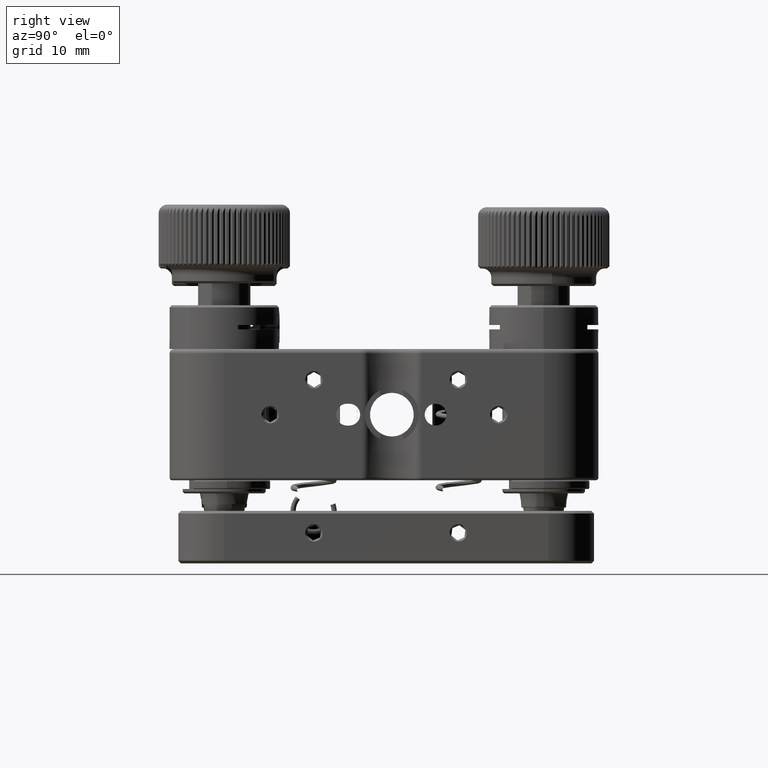
[diagram: clean part render]
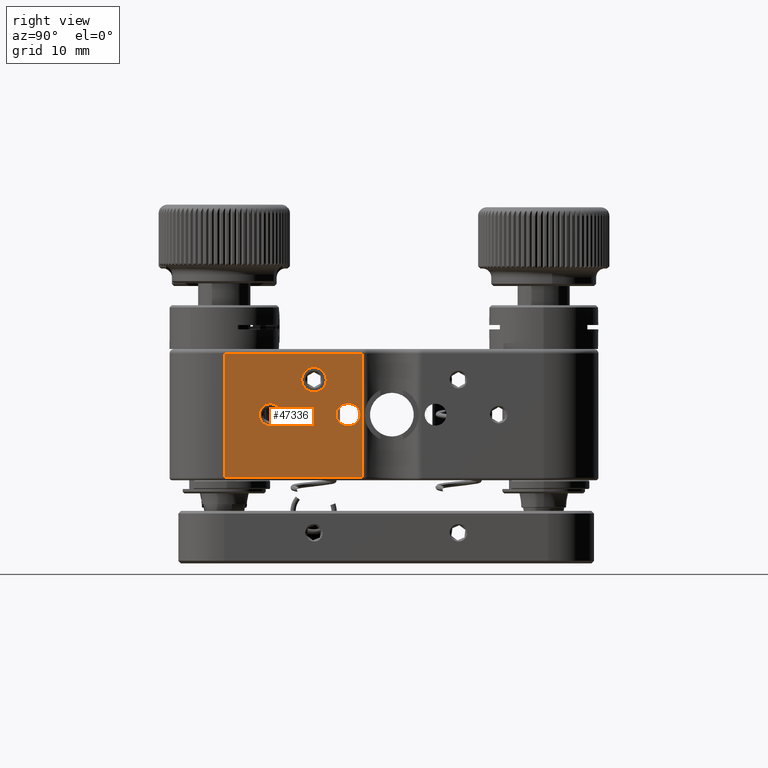
[diagram: same view with one face highlighted and labeled with its STEP entity id]
A machine part, right view. The second image highlights one B-rep face of the part: STEP entity #47336.
In plain terms, the highlighted planar face has unit normal (-1, -0, 0).
Its self-contained STEP definition (entity closure, byte-faithful):
#384 = VERTEX_POINT ( 'NONE', #39120 ) ;
#873 = EDGE_CURVE ( 'NONE', #12786, #384, #6292, .T. ) ;
#1487 = EDGE_LOOP ( 'NONE', ( #53136, #22318 ) ) ;
#1794 = DIRECTION ( 'NONE',  ( 1.000000000000000000, -0.000000000000000000, -0.000000000000000000 ) ) ;
#2675 = ORIENTED_EDGE ( 'NONE', *, *, #38685, .F. ) ;
#3104 = DIRECTION ( 'NONE',  ( 0.000000000000000000, 0.000000000000000000, -1.000000000000000000 ) ) ;
#3342 = ORIENTED_EDGE ( 'NONE', *, *, #20393, .T. ) ;
#3479 = VERTEX_POINT ( 'NONE', #52392 ) ;
#3561 = LINE ( 'NONE', #28677, #41124 ) ;
#4210 = CARTESIAN_POINT ( 'NONE',  ( 24.50000000000000000, -8.000000000000000000, 3.999999999999998224 ) ) ;
#4452 = CARTESIAN_POINT ( 'NONE',  ( 24.50000000000000000, -8.000000000000000000, 2.750000000000009326 ) ) ;
#4879 = DIRECTION ( 'NONE',  ( -1.416100796715761110E-16, 1.000000000000000000, 0.000000000000000000 ) ) ;
#6283 = VERTEX_POINT ( 'NONE', #18805 ) ;
#6292 = CIRCLE ( 'NONE', #9843, 1.249999999999988898 ) ;
#7728 = VECTOR ( 'NONE', #48927, 1000.000000000000000 ) ;
#8100 = PLANE ( 'NONE',  #16048 ) ;
#9843 = AXIS2_PLACEMENT_3D ( 'NONE', #49378, #19750, #36787 ) ;
#10381 = FACE_BOUND ( 'NONE', #1487, .T. ) ;
#10762 = EDGE_CURVE ( 'NONE', #384, #12786, #39155, .T. ) ;
#10957 = DIRECTION ( 'NONE',  ( 0.000000000000000000, 0.000000000000000000, -1.000000000000000000 ) ) ;
#10986 = DIRECTION ( 'NONE',  ( 0.000000000000000000, 0.000000000000000000, -1.000000000000000000 ) ) ;
#11109 = VERTEX_POINT ( 'NONE', #34485 ) ;
#11822 = EDGE_CURVE ( 'NONE', #28582, #38625, #52208, .T. ) ;
#12015 = FACE_BOUND ( 'NONE', #48183, .T. ) ;
#12786 = VERTEX_POINT ( 'NONE', #4452 ) ;
#13476 = DIRECTION ( 'NONE',  ( 0.000000000000000000, 0.000000000000000000, -1.000000000000000000 ) ) ;
#16048 = AXIS2_PLACEMENT_3D ( 'NONE', #37144, #29590, #50849 ) ;
#16693 = CARTESIAN_POINT ( 'NONE',  ( 24.50000000000000355, -18.24999999999999289, 6.999999999999999112 ) ) ;
#17069 = VERTEX_POINT ( 'NONE', #18864 ) ;
#17246 = CIRCLE ( 'NONE', #44003, 1.249999999999988898 ) ;
#18261 = CARTESIAN_POINT ( 'NONE',  ( 24.50000000000000355, -12.99999999999999822, -1.249999999999988898 ) ) ;
#18471 = VECTOR ( 'NONE', #4879, 1000.000000000000000 ) ;
#18692 = DIRECTION ( 'NONE',  ( 0.000000000000000000, 0.000000000000000000, -1.000000000000000000 ) ) ;
#18805 = CARTESIAN_POINT ( 'NONE',  ( 24.50000000000000355, -12.99999999999999822, 1.249999999999988898 ) ) ;
#18864 = CARTESIAN_POINT ( 'NONE',  ( 24.50000000000000000, -2.476388603226839624, -7.200000000000000178 ) ) ;
#19750 = DIRECTION ( 'NONE',  ( 1.000000000000000000, -0.000000000000000000, -0.000000000000000000 ) ) ;
#19876 = LINE ( 'NONE', #28230, #53994 ) ;
#20393 = EDGE_CURVE ( 'NONE', #17069, #3479, #3561, .T. ) ;
#22260 = EDGE_CURVE ( 'NONE', #42993, #17069, #42586, .T. ) ;
#22318 = ORIENTED_EDGE ( 'NONE', *, *, #10762, .F. ) ;
#22645 = ORIENTED_EDGE ( 'NONE', *, *, #43451, .F. ) ;
#23993 = EDGE_CURVE ( 'NONE', #11109, #35197, #53672, .T. ) ;
#25746 = VERTEX_POINT ( 'NONE', #16693 ) ;
#25892 = VECTOR ( 'NONE', #47278, 1000.000000000000000 ) ;
#26029 = CARTESIAN_POINT ( 'NONE',  ( 24.50000000000000000, -3.974999999999999201, 1.561424668912872251E-16 ) ) ;
#27140 = LINE ( 'NONE', #34964, #25892 ) ;
#28230 = CARTESIAN_POINT ( 'NONE',  ( 24.50000000000000355, -18.24999999999999289, 7.500000000000000000 ) ) ;
#28582 = VERTEX_POINT ( 'NONE', #43203 ) ;
#28627 = EDGE_LOOP ( 'NONE', ( #32698, #53713, #3342, #55184 ) ) ;
#28677 = CARTESIAN_POINT ( 'NONE',  ( 24.50000000000000000, -2.476388603226839624, 7.500000000000000000 ) ) ;
#28885 = AXIS2_PLACEMENT_3D ( 'NONE', #53442, #1794, #10986 ) ;
#29590 = DIRECTION ( 'NONE',  ( -1.000000000000000000, -1.416100796715761110E-16, 0.000000000000000000 ) ) ;
#30568 = CARTESIAN_POINT ( 'NONE',  ( 24.49999999999999645, 24.50000000000000355, -7.200000000000000178 ) ) ;
#32698 = ORIENTED_EDGE ( 'NONE', *, *, #41722, .T. ) ;
#34301 = ORIENTED_EDGE ( 'NONE', *, *, #23993, .F. ) ;
#34461 = ORIENTED_EDGE ( 'NONE', *, *, #53823, .F. ) ;
#34485 = CARTESIAN_POINT ( 'NONE',  ( 24.50000000000000000, -4.224999999999999645, -1.250000000000000000 ) ) ;
#34964 = CARTESIAN_POINT ( 'NONE',  ( 24.50000000000000355, -18.24999999999999289, 6.999999999999999112 ) ) ;
#35197 = VERTEX_POINT ( 'NONE', #39324 ) ;
#36104 = CARTESIAN_POINT ( 'NONE',  ( 24.50000000000000355, -18.24999999999999289, -7.200000000000000178 ) ) ;
#36787 = DIRECTION ( 'NONE',  ( 0.000000000000000000, 0.000000000000000000, -1.000000000000000000 ) ) ;
#37144 = CARTESIAN_POINT ( 'NONE',  ( 24.49999999999999645, 24.50000000000000355, 7.500000000000000000 ) ) ;
#38284 = DIRECTION ( 'NONE',  ( 1.000000000000000000, -0.000000000000000000, -0.000000000000000000 ) ) ;
#38576 = EDGE_LOOP ( 'NONE', ( #51386, #53199, #34301, #22645 ) ) ;
#38625 = VERTEX_POINT ( 'NONE', #48442 ) ;
#38685 = EDGE_CURVE ( 'NONE', #6283, #52286, #42258, .T. ) ;
#39120 = CARTESIAN_POINT ( 'NONE',  ( 24.50000000000000000, -8.000000000000000000, 5.249999999999987566 ) ) ;
#39155 = CIRCLE ( 'NONE', #41818, 1.249999999999988898 ) ;
#39324 = CARTESIAN_POINT ( 'NONE',  ( 24.50000000000000000, -3.974999999999998312, -1.250000000000000000 ) ) ;
#39519 = AXIS2_PLACEMENT_3D ( 'NONE', #26029, #43915, #13476 ) ;
#40214 = DIRECTION ( 'NONE',  ( 1.000000000000000000, -0.000000000000000000, -0.000000000000000000 ) ) ;
#40490 = CARTESIAN_POINT ( 'NONE',  ( 24.50000000000000355, -12.99999999999999822, 0.000000000000000000 ) ) ;
#41124 = VECTOR ( 'NONE', #41279, 1000.000000000000000 ) ;
#41279 = DIRECTION ( 'NONE',  ( 0.000000000000000000, 0.000000000000000000, 1.000000000000000000 ) ) ;
#41722 = EDGE_CURVE ( 'NONE', #25746, #42993, #19876, .T. ) ;
#41818 = AXIS2_PLACEMENT_3D ( 'NONE', #4210, #38284, #3104 ) ;
#42258 = CIRCLE ( 'NONE', #28885, 1.249999999999988898 ) ;
#42414 = CARTESIAN_POINT ( 'NONE',  ( 24.50000000000000000, -4.224999999999999645, 7.960204194457759732E-17 ) ) ;
#42441 = FACE_OUTER_BOUND ( 'NONE', #28627, .T. ) ;
#42586 = LINE ( 'NONE', #30568, #18471 ) ;
#42993 = VERTEX_POINT ( 'NONE', #36104 ) ;
#43203 = CARTESIAN_POINT ( 'NONE',  ( 24.50000000000000000, -3.975000000000002753, 1.250000000000000222 ) ) ;
#43252 = DIRECTION ( 'NONE',  ( 0.000000000000000000, -1.000000000000000000, 0.000000000000000000 ) ) ;
#43451 = EDGE_CURVE ( 'NONE', #38625, #11109, #44321, .T. ) ;
#43915 = DIRECTION ( 'NONE',  ( 1.000000000000000000, 0.000000000000000000, 0.000000000000000000 ) ) ;
#44003 = AXIS2_PLACEMENT_3D ( 'NONE', #40490, #40214, #18692 ) ;
#44321 = CIRCLE ( 'NONE', #51481, 1.250000000000000000 ) ;
#44727 = CARTESIAN_POINT ( 'NONE',  ( 24.50000000000000000, -3.974999999999998312, -1.250000000000000000 ) ) ;
#44846 = CARTESIAN_POINT ( 'NONE',  ( 24.50000000000000000, -3.975000000000000089, 1.250000000000000000 ) ) ;
#46365 = FACE_BOUND ( 'NONE', #38576, .T. ) ;
#47172 = DIRECTION ( 'NONE',  ( 1.000000000000000000, 0.000000000000000000, 0.000000000000000000 ) ) ;
#47278 = DIRECTION ( 'NONE',  ( 1.416100796715761110E-16, -1.000000000000000000, -0.000000000000000000 ) ) ;
#47336 = ADVANCED_FACE ( 'NONE', ( #10381, #12015, #46365, #42441 ), #8100, .F. ) ;
#48183 = EDGE_LOOP ( 'NONE', ( #34461, #2675 ) ) ;
#48251 = EDGE_CURVE ( 'NONE', #3479, #25746, #27140, .T. ) ;
#48442 = CARTESIAN_POINT ( 'NONE',  ( 24.50000000000000000, -4.224999999999999645, 1.250000000000000000 ) ) ;
#48927 = DIRECTION ( 'NONE',  ( -0.000000000000000000, 1.000000000000000000, -0.000000000000000000 ) ) ;
#49378 = CARTESIAN_POINT ( 'NONE',  ( 24.50000000000000000, -8.000000000000000000, 3.999999999999998224 ) ) ;
#50849 = DIRECTION ( 'NONE',  ( 1.416100796715761110E-16, -1.000000000000000000, 0.000000000000000000 ) ) ;
#51386 = ORIENTED_EDGE ( 'NONE', *, *, #11822, .F. ) ;
#51481 = AXIS2_PLACEMENT_3D ( 'NONE', #42414, #47172, #55283 ) ;
#52208 = LINE ( 'NONE', #44846, #53523 ) ;
#52286 = VERTEX_POINT ( 'NONE', #18261 ) ;
#52392 = CARTESIAN_POINT ( 'NONE',  ( 24.50000000000000000, -2.476388603226839624, 6.999999999999999112 ) ) ;
#53136 = ORIENTED_EDGE ( 'NONE', *, *, #873, .F. ) ;
#53161 = EDGE_CURVE ( 'NONE', #35197, #28582, #54699, .T. ) ;
#53199 = ORIENTED_EDGE ( 'NONE', *, *, #53161, .F. ) ;
#53442 = CARTESIAN_POINT ( 'NONE',  ( 24.50000000000000355, -12.99999999999999822, 0.000000000000000000 ) ) ;
#53523 = VECTOR ( 'NONE', #43252, 1000.000000000000000 ) ;
#53672 = LINE ( 'NONE', #44727, #7728 ) ;
#53713 = ORIENTED_EDGE ( 'NONE', *, *, #22260, .T. ) ;
#53823 = EDGE_CURVE ( 'NONE', #52286, #6283, #17246, .T. ) ;
#53994 = VECTOR ( 'NONE', #10957, 1000.000000000000000 ) ;
#54699 = CIRCLE ( 'NONE', #39519, 1.250000000000000000 ) ;
#55184 = ORIENTED_EDGE ( 'NONE', *, *, #48251, .T. ) ;
#55283 = DIRECTION ( 'NONE',  ( 0.000000000000000000, 0.000000000000000000, -1.000000000000000000 ) ) ;